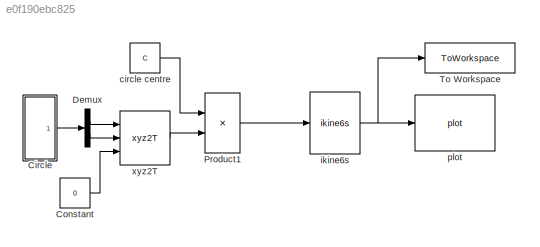
MODEL slx_e0f190ebc825
KIND model
CONFIG AbsTol = auto
CONFIG EnableMultiTasking = off
CONFIG FixedStep = auto
CONFIG MaxStep = auto
CONFIG MinStep = auto
CONFIG RelTol = 1e-3
CONFIG SampleTimeConstraint = Unconstrained
CONFIG Solver = VariableStepAuto
CONFIG SolverName = VariableStepAuto
CONFIG StartTime = 0.0
CONFIG StopTime = tf
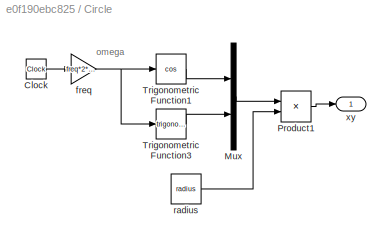
BLOCK [SubSystem] Circle
  Ports = [0, 1]
  RequestExecContextInheritance = off
BLOCK [Clock] Circle/Clock
BLOCK [Mux] Circle/Mux
  DisplayOption = bar
  Inputs = 2
  Ports = [2, 1]
BLOCK [Product] Circle/Product1
  Multiplication = Matrix(*)
  Ports = [2, 1]
  RndMeth = Zero
BLOCK [Trigonometry] Circle/Trigonometric Function1
  Operator = cos
  Ports = [1, 1]
BLOCK [Trigonometry] Circle/Trigonometric Function3
  Ports = [1, 1]
BLOCK [Gain] Circle/freq
  Gain = freq*2*pi
BLOCK [Constant] Circle/radius
  Value = radius
BLOCK [Outport] Circle/xy
BLOCK [Constant] Constant
  Value = 0
BLOCK [Demux] Demux
  Outputs = 2
  Ports = [1, 2]
BLOCK [Product] Product1
  InputSameDT = on
  Multiplication = Matrix(*)
  OutDataTypeStr = Inherit: Same as first input
  Ports = [2, 1]
  RndMeth = Zero
  SaturateOnIntegerOverflow = on
BLOCK [ToWorkspace] To Workspace
  FixptAsFi = on
  MaxDataPoints = inf
  Ports = [1]
  SampleTime = -1
  SaveFormat = Timeseries
  VariableName = q_final
BLOCK [Constant] circle centre
  Value = C
BLOCK [Reference] ikine6s  REF=roblocks/Arm/ikine6s  (lib defined in mdl_2a292b13c81b, mdl_69400f8cfe22, +12 more)
  Ports = [1, 1]
  SourceBlock = roblocks/Arm/ikine6s
BLOCK [Reference] plot  REF=roblocks/Arm/plot  (lib defined in mdl_2a292b13c81b, mdl_69400f8cfe22, +12 more)
  Ports = [1]
  SourceBlock = roblocks/Arm/plot
BLOCK [Reference] xyz2T  REF=roblocks/Toolbox/xyz2T  (lib defined in mdl_2a292b13c81b, mdl_69400f8cfe22, +12 more)
  Ports = [3, 1]
  SourceBlock = roblocks/Toolbox/xyz2T
ANNOTATION Circle: omega
LINE Circle/Clock:1 -> Circle/freq:1
LINE Circle/Mux:1 -> Circle/Product1:1
LINE Circle/Product1:1 -> Circle/xy:1
LINE Circle/Trigonometric Function1:1 -> Circle/Mux:1
LINE Circle/Trigonometric Function3:1 -> Circle/Mux:2
NET Circle/freq:1 -> Circle/Trigonometric Function1:1, Circle/Trigonometric Function3:1
LINE Circle/radius:1 -> Circle/Product1:2
LINE Circle:1 -> Demux:1
LINE Constant:1 -> xyz2T:3
LINE Demux:1 -> xyz2T:1
LINE Demux:2 -> xyz2T:2
LINE Product1:1 -> ikine6s:1
LINE circle centre:1 -> Product1:1
NET ikine6s:1 -> To Workspace:1, plot:1
LINE xyz2T:1 -> Product1:2
note: NET lines group one-source signal fan-out (src -> all destinations, sorted); 1:1 wires keep LINE
